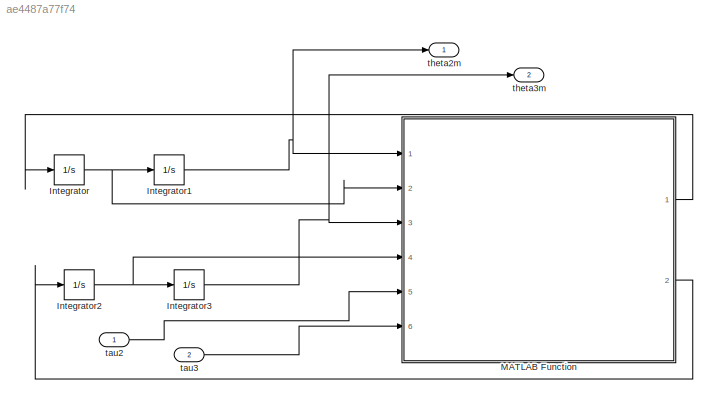
MODEL slx_ae4487a77f74
KIND model
CONFIG AbsTol = auto
CONFIG EnableMultiTasking = off
CONFIG FixedStep = auto
CONFIG MaxStep = auto
CONFIG MinStep = auto
CONFIG RelTol = 1e-3
CONFIG SampleTimeConstraint = Unconstrained
CONFIG Solver = VariableStepAuto
CONFIG SolverName = VariableStepAuto
CONFIG StartTime = 0.0
CONFIG StopTime = 10.0
BLOCK [Integrator] Integrator
  Ports = [1, 1]
BLOCK [Integrator] Integrator1
  Ports = [1, 1]
BLOCK [Integrator] Integrator2
  Ports = [1, 1]
BLOCK [Integrator] Integrator3
  Ports = [1, 1]
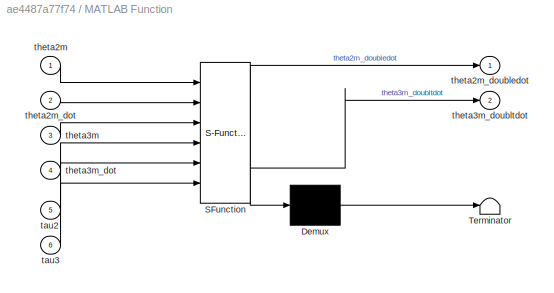
BLOCK [SubSystem] MATLAB Function
  ErrorFcn = Stateflow.Translate.translate
  PermitHierarchicalResolution = ExplicitOnly
  Ports = [6, 2]
  RequestExecContextInheritance = off
  SFBlockType = MATLAB Function
  TreatAsAtomicUnit = on
BLOCK [Demux] MATLAB Function/ Demux 
  Outputs = 1
  Ports = [1, 1]
BLOCK [S-Function] MATLAB Function/ SFunction 
  EnableBusSupport = on
  FunctionName = sf_sfun
  PortCounts = [6 3]
  Ports = [6, 3]
  SFcnIsStateOwnerBlock = off
  SFunctionDeploymentMode = off
  Tag = Stateflow S-Function 2
BLOCK [Terminator] MATLAB Function/ Terminator 
BLOCK [Inport] MATLAB Function/tau2
  Port = 5
BLOCK [Inport] MATLAB Function/tau3
  Port = 6
BLOCK [Inport] MATLAB Function/theta2m
BLOCK [Inport] MATLAB Function/theta2m_dot
  Port = 2
BLOCK [Outport] MATLAB Function/theta2m_doubledot
BLOCK [Inport] MATLAB Function/theta3m
  Port = 3
BLOCK [Inport] MATLAB Function/theta3m_dot
  Port = 4
BLOCK [Outport] MATLAB Function/theta3m_doubltdot
  Port = 2
BLOCK [Inport] tau2
BLOCK [Inport] tau3
  Port = 2
BLOCK [Outport] theta2m
BLOCK [Outport] theta3m
  Port = 2
NET Integrator1:1 -> MATLAB Function:1, theta2m:1
NET Integrator2:1 -> Integrator3:1, MATLAB Function:4
NET Integrator3:1 -> MATLAB Function:3, theta3m:1
NET Integrator:1 -> Integrator1:1, MATLAB Function:2
LINE MATLAB Function:1 -> Integrator:1
LINE MATLAB Function:2 -> Integrator2:1
LINE tau2:1 -> MATLAB Function:5
LINE tau3:1 -> MATLAB Function:6
note: NET lines group one-source signal fan-out (src -> all destinations, sorted); 1:1 wires keep LINE
CHART MATLAB Function states=1 transitions=1
  STATE_LABEL 'eML_blk_kernel()'
  STATE_LABEL 'SCRIPT:\nfunction [theta2m_doubledot, theta3m_doubltdot]  = fcn(theta2m, theta2m_dot, theta3m, theta3m_dot,tau2, tau3)\np = [0.03;0.0128;0.0076;0.0753;0.0298];\np1=p(1);\np2=p(2);\np3=p(3);\np4=p(4);\np5=p(5);\ng=9.81;\nFic = [-0.04*theta2m_dot; -0.037*theta3m_dot];\ntau = [tau2;tau3];\nD = [p1 -p3*sin(theta3m - theta2m); -p3*sin(theta3m-theta2m) p2];\nC = [0 -p3*cos(theta3m - theta2m)*theta3m_dot;\n    p3*cos...<+219ch>'
CHART  states=0 transitions=0
